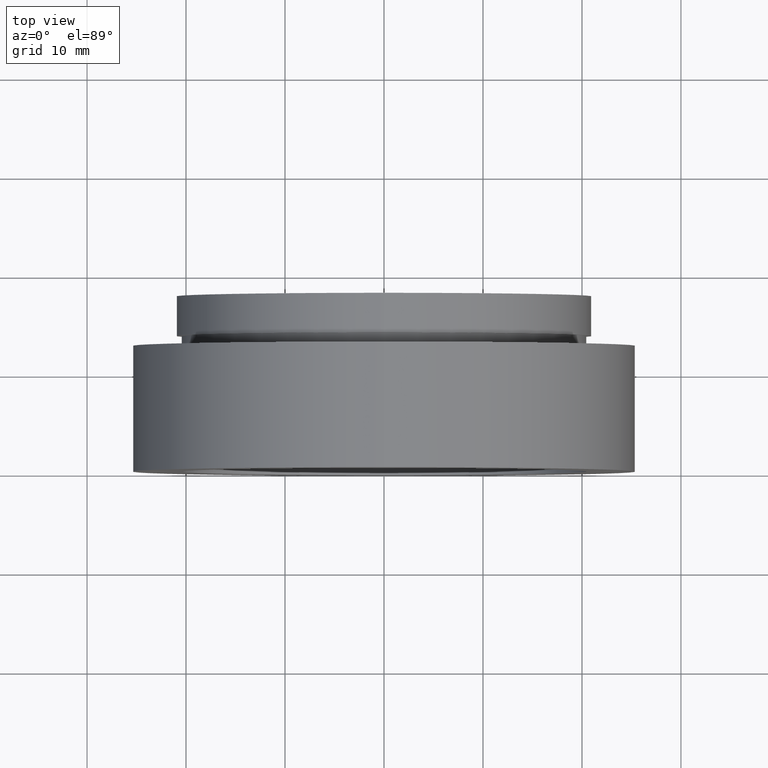
[diagram: clean part render]
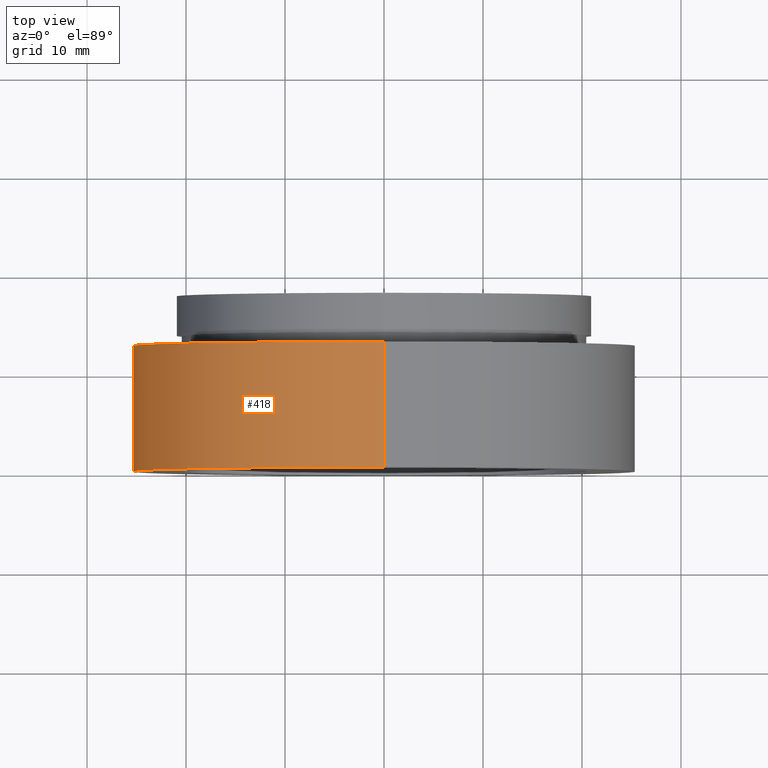
[diagram: same view with one face highlighted and labeled with its STEP entity id]
A machine part, top view. The second image highlights one B-rep face of the part: STEP entity #418.
In plain terms, the highlighted cylindrical surface (partial cylindrical patch) has radius 25.4 mm, axis along (-0, 1, -0).
Its self-contained STEP definition (entity closure, byte-faithful):
#12 = EDGE_CURVE ( 'NONE', #325, #257, #480, .T. ) ;
#52 = DIRECTION ( 'NONE',  ( 0.0000000000000000000, 0.0000000000000000000, 1.000000000000000000 ) ) ;
#55 = DIRECTION ( 'NONE',  ( -0.0000000000000000000, 1.000000000000000000, -0.0000000000000000000 ) ) ;
#57 = CARTESIAN_POINT ( 'NONE',  ( 3.110602869834279600E-015, -2.775557561562891400E-014, -25.40000000000002000 ) ) ;
#58 = VERTEX_POINT ( 'NONE', #358 ) ;
#68 = ORIENTED_EDGE ( 'NONE', *, *, #182, .T. ) ;
#72 = CARTESIAN_POINT ( 'NONE',  ( 0.0000000000000000000, -2.775557561562891400E-014, 0.0000000000000000000 ) ) ;
#76 = AXIS2_PLACEMENT_3D ( 'NONE', #72, #114, #208 ) ;
#83 = DIRECTION ( 'NONE',  ( -0.0000000000000000000, 1.000000000000000000, -0.0000000000000000000 ) ) ;
#114 = DIRECTION ( 'NONE',  ( -0.0000000000000000000, 1.000000000000000000, -0.0000000000000000000 ) ) ;
#118 = EDGE_CURVE ( 'NONE', #58, #210, #220, .T. ) ;
#125 = VECTOR ( 'NONE', #390, 1000.000000000000000 ) ;
#132 = CARTESIAN_POINT ( 'NONE',  ( 3.110602869834279600E-015, 161.3761669434274500, -25.40000000000002000 ) ) ;
#136 = LINE ( 'NONE', #132, #125 ) ;
#169 = CARTESIAN_POINT ( 'NONE',  ( 0.0000000000000000000, 12.69999999999998900, 25.40000000000001600 ) ) ;
#180 = AXIS2_PLACEMENT_3D ( 'NONE', #369, #565, #314 ) ;
#182 = EDGE_CURVE ( 'NONE', #257, #210, #415, .T. ) ;
#208 = DIRECTION ( 'NONE',  ( 0.0000000000000000000, 0.0000000000000000000, 1.000000000000000000 ) ) ;
#210 = VERTEX_POINT ( 'NONE', #169 ) ;
#220 = CIRCLE ( 'NONE', #180, 25.40000000000001600 ) ;
#236 = EDGE_CURVE ( 'NONE', #325, #58, #136, .T. ) ;
#257 = VERTEX_POINT ( 'NONE', #479 ) ;
#314 = DIRECTION ( 'NONE',  ( 0.0000000000000000000, 0.0000000000000000000, 1.000000000000000000 ) ) ;
#325 = VERTEX_POINT ( 'NONE', #57 ) ;
#332 = ORIENTED_EDGE ( 'NONE', *, *, #236, .F. ) ;
#358 = CARTESIAN_POINT ( 'NONE',  ( 3.110602869834279200E-015, 12.69999999999998900, -25.40000000000001600 ) ) ;
#369 = CARTESIAN_POINT ( 'NONE',  ( 0.0000000000000000000, 12.69999999999998900, 0.0000000000000000000 ) ) ;
#390 = DIRECTION ( 'NONE',  ( -0.0000000000000000000, 1.000000000000000000, -0.0000000000000000000 ) ) ;
#407 = CYLINDRICAL_SURFACE ( 'NONE', #523, 25.40000000000002000 ) ;
#415 = LINE ( 'NONE', #422, #494 ) ;
#418 = ADVANCED_FACE ( 'NONE', ( #534 ), #407, .T. ) ;
#422 = CARTESIAN_POINT ( 'NONE',  ( 0.0000000000000000000, 161.3761669434274500, 25.40000000000002000 ) ) ;
#479 = CARTESIAN_POINT ( 'NONE',  ( 0.0000000000000000000, -2.775557561562891400E-014, 25.40000000000002000 ) ) ;
#480 = CIRCLE ( 'NONE', #76, 25.40000000000002000 ) ;
#494 = VECTOR ( 'NONE', #83, 1000.000000000000000 ) ;
#495 = ORIENTED_EDGE ( 'NONE', *, *, #12, .T. ) ;
#523 = AXIS2_PLACEMENT_3D ( 'NONE', #581, #55, #52 ) ;
#534 = FACE_OUTER_BOUND ( 'NONE', #624, .T. ) ;
#565 = DIRECTION ( 'NONE',  ( -0.0000000000000000000, 1.000000000000000000, -0.0000000000000000000 ) ) ;
#581 = CARTESIAN_POINT ( 'NONE',  ( 0.0000000000000000000, 161.3761669434274500, 0.0000000000000000000 ) ) ;
#617 = ORIENTED_EDGE ( 'NONE', *, *, #118, .F. ) ;
#624 = EDGE_LOOP ( 'NONE', ( #332, #495, #68, #617 ) ) ;